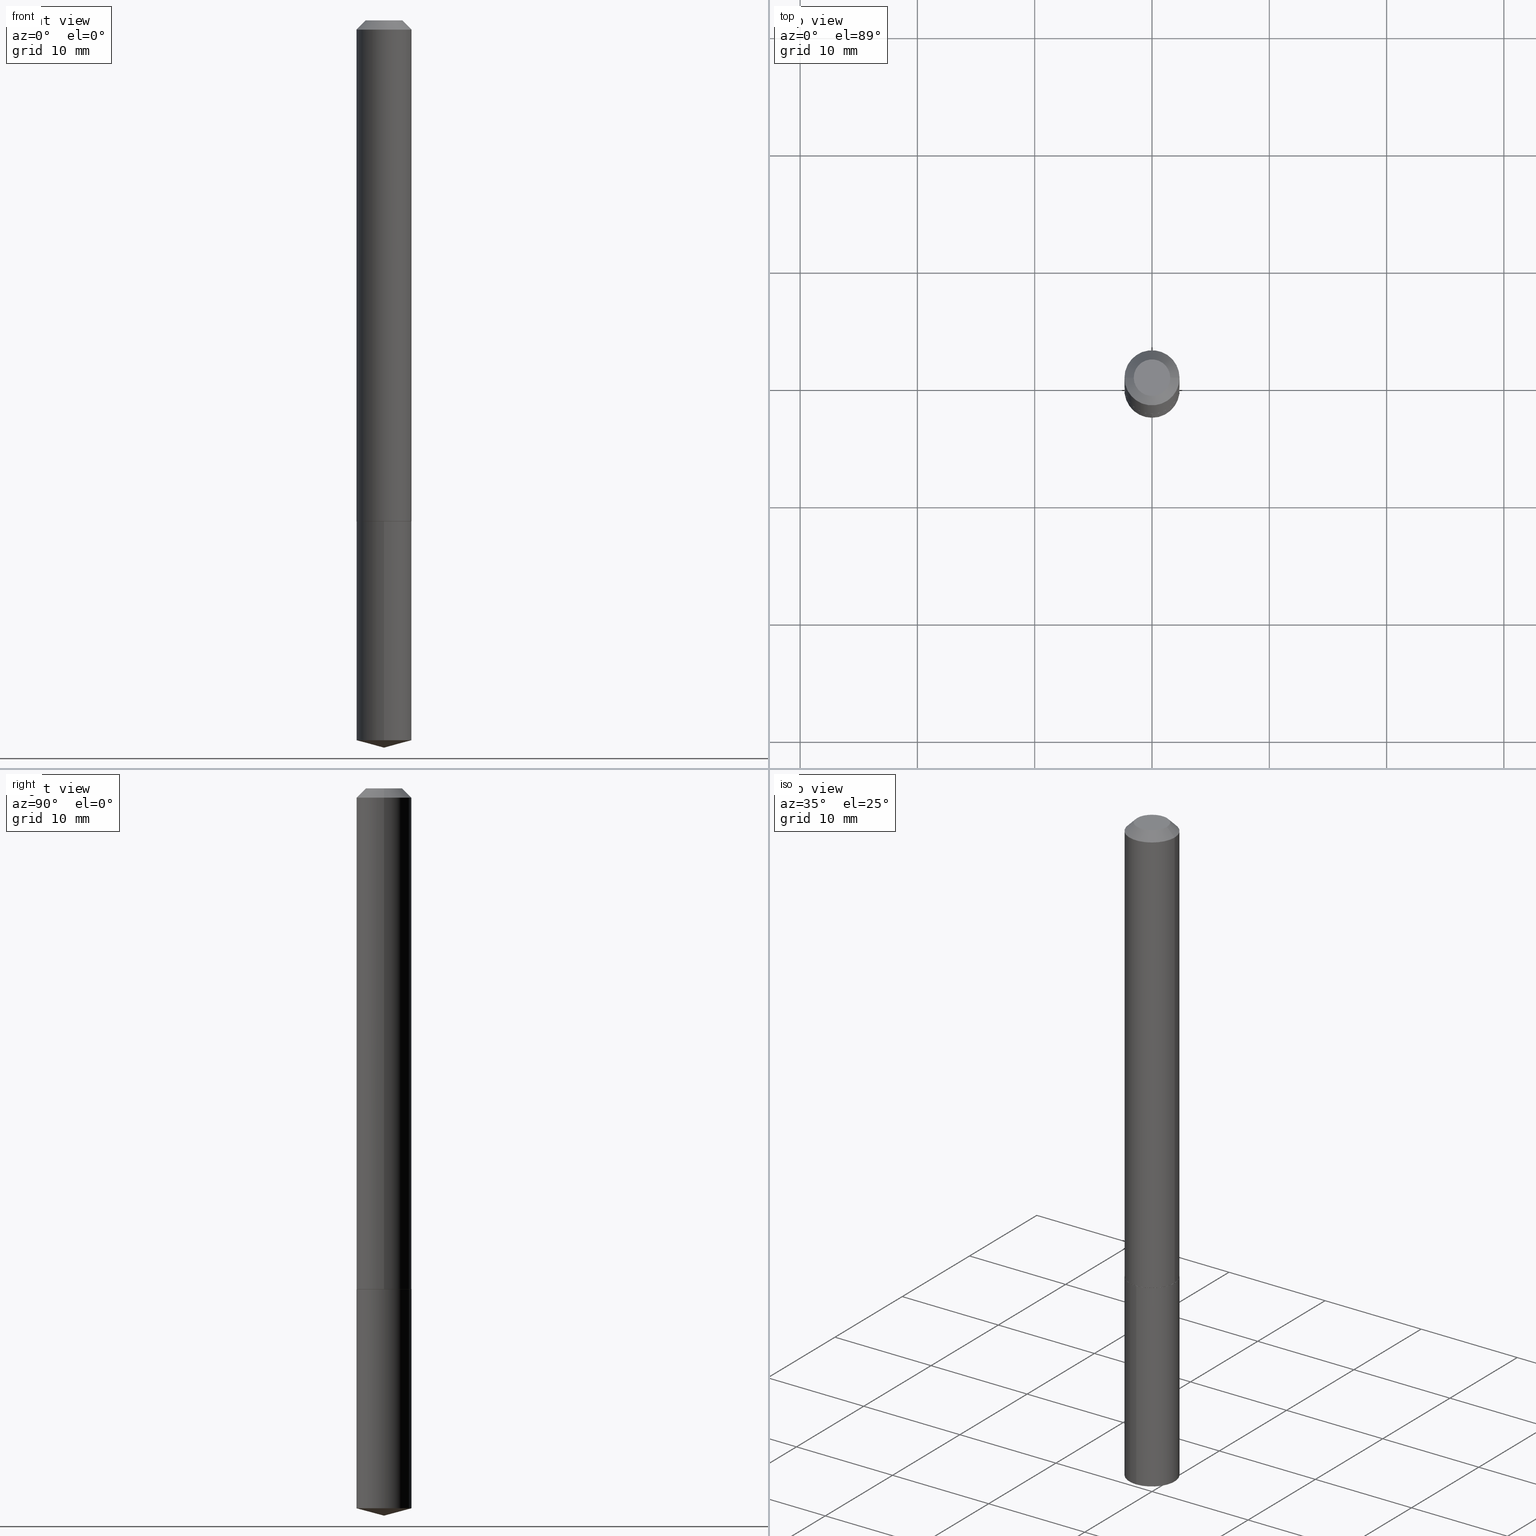
[diagram: canonical four-view strip — front | top / right | iso, engineering-drawing reading convention]
A machine part, canonical four-view strip (front | top / right | iso — engineering-drawing reading convention). The complete STEP part file that produces these views, byte-faithful:
ISO-10303-21;
HEADER;
FILE_DESCRIPTION (( 'STEP AP203' ),
    '1' );
FILE_NAME ('68982.STEP',
    '2024-04-23T14:03:08',
    ( '' ),
    ( '' ),
    'SwSTEP 2.0',
    'SolidWorks 2023',
    '' );
FILE_SCHEMA (( 'CONFIG_CONTROL_DESIGN' ));
ENDSEC;

DATA;
#1 = CONICAL_SURFACE ( 'NONE', #285, 0.09250000000000020706, 0.7853981633974824739 ) ;
#2 = VECTOR ( 'NONE', #243, 39.37007874015748854 ) ;
#3 = CYLINDRICAL_SURFACE ( 'NONE', #154, 0.09249999999999999889 ) ;
#4 = CIRCLE ( 'NONE', #92, 0.09250000000000020706 ) ;
#5 = CARTESIAN_POINT ( 'NONE',  ( 7.642090019328602662E-31, -1.091087918388490267E-16, -0.03125000000000020817 ) ) ;
#6 = CIRCLE ( 'NONE', #215, 0.06125000000000000583 ) ;
#7 = CARTESIAN_POINT ( 'NONE',  ( 0.000000000000000000, 0.000000000000000000, 0.000000000000000000 ) ) ;
#8 = DATE_AND_TIME ( #344, #256 ) ;
#9 = CARTESIAN_POINT ( 'NONE',  ( -0.09250000000000010991, 6.572520305780934529E-16, -4.550014958485793075E-30 ) ) ;
#10 = ORIENTED_EDGE ( 'NONE', *, *, #228, .F. ) ;
#11 = PRODUCT ( '68982', '68982', '', ( #255 ) ) ;
#12 = CARTESIAN_POINT ( 'NONE',  ( 5.969115860415671478E-29, -8.522398256027419659E-15, -2.440900000000000070 ) ) ;
#13 = CARTESIAN_POINT ( 'NONE',  ( -0.09250000000000020706, -5.210182359347813347E-15, -1.680500000000000327 ) ) ;
#14 = ORIENTED_EDGE ( 'NONE', *, *, #330, .T. ) ;
#15 = AXIS2_PLACEMENT_3D ( 'NONE', #166, #259, #284 ) ;
#16 = LOCAL_TIME ( 10, 3, 8.000000000000000000, #273 ) ;
#17 =( NAMED_UNIT ( * ) PLANE_ANGLE_UNIT ( ) SI_UNIT ( $, .RADIAN. ) );
#18 = DIRECTION ( 'NONE',  ( 1.000000000000000000, -6.982962677686267499E-15, 4.876176775795935232E-29 ) ) ;
#19 = DIRECTION ( 'NONE',  ( -2.445456946378660043E-29, 3.491498322761038750E-15, 1.000000000000000000 ) ) ;
#20 = APPROVAL ( #277, 'UNSPECIFIED' ) ;
#21 = DIRECTION ( 'NONE',  ( -2.445456946378660043E-29, 3.491498322761038355E-15, 1.000000000000000000 ) ) ;
#22 = LINE ( 'NONE', #144, #275 ) ;
#23 = APPROVAL_STATUS ( 'not_yet_approved' ) ;
#24 = DIRECTION ( 'NONE',  ( -6.982962677686266711E-15, -1.000000000000000000, 3.510303681827577719E-15 ) ) ;
#25 = DIRECTION ( 'NONE',  ( 1.000000000000000000, -6.982962677686270655E-15, 0.000000000000000000 ) ) ;
#26 = CC_DESIGN_APPROVAL ( #20, ( #363 ) ) ;
#27 = APPROVAL_DATE_TIME ( #57, #20 ) ;
#28 = DIRECTION ( 'NONE',  ( 1.000000000000000000, -6.982962677686266711E-15, 0.000000000000000000 ) ) ;
#29 = CC_DESIGN_DATE_AND_TIME_ASSIGNMENT ( #87, #268, ( #246 ) ) ;
#30 = DIRECTION ( 'NONE',  ( -2.445456946378660043E-29, 3.491498322761038355E-15, 1.000000000000000000 ) ) ;
#31 = EDGE_CURVE ( 'NONE', #385, #267, #4, .T. ) ;
#32 = FACE_OUTER_BOUND ( 'NONE', #58, .T. ) ;
#33 = VECTOR ( 'NONE', #281, 39.37007874015748854 ) ;
#34 = AXIS2_PLACEMENT_3D ( 'NONE', #294, #96, #329 ) ;
#35 = LINE ( 'NONE', #182, #123 ) ;
#36 = AXIS2_PLACEMENT_3D ( 'NONE', #197, #230, #314 ) ;
#37 = AXIS2_PLACEMENT_3D ( 'NONE', #77, #369, #220 ) ;
#38 = DIRECTION ( 'NONE',  ( -2.438088387897960049E-29, 3.491481338843145188E-15, 1.000000000000000000 ) ) ;
#39 = ORIENTED_EDGE ( 'NONE', *, *, #49, .F. ) ;
#40 = EDGE_CURVE ( 'NONE', #367, #244, #324, .T. ) ;
#41 = COORDINATED_UNIVERSAL_TIME_OFFSET ( 5, 0, .BEHIND. ) ;
#42 = CARTESIAN_POINT ( 'NONE',  ( 4.110833063197214951E-29, -5.869180130595328501E-15, -1.681000000000000272 ) ) ;
#43 = AXIS2_PLACEMENT_3D ( 'NONE', #168, #341, #278 ) ;
#44 = ORIENTED_EDGE ( 'NONE', *, *, #362, .F. ) ;
#45 = APPROVAL_PERSON_ORGANIZATION ( #160, #20, #111 ) ;
#46 = CARTESIAN_POINT ( 'NONE',  ( 5.908524411963939619E-29, -8.435831871635287469E-15, -2.416114699700121715 ) ) ;
#47 = ORIENTED_EDGE ( 'NONE', *, *, #270, .T. ) ;
#48 =( LENGTH_UNIT ( ) NAMED_UNIT ( * ) SI_UNIT ( $, .METRE. ) );
#49 = EDGE_CURVE ( 'NONE', #267, #385, #272, .T. ) ;
#50 = CARTESIAN_POINT ( 'NONE',  ( 6.572520305781515328E-16, 0.09249999999999154732, -2.416114699700122159 ) ) ;
#51 =( NAMED_UNIT ( * ) SI_UNIT ( $, .STERADIAN. ) SOLID_ANGLE_UNIT ( ) );
#52 = DIRECTION ( 'NONE',  ( -6.982962677686265922E-15, -1.000000000000000000, 2.953349182339743999E-15 ) ) ;
#53 = EDGE_LOOP ( 'NONE', ( #142, #371, #61, #44 ) ) ;
#54 = APPROVAL_PERSON_ORGANIZATION ( #133, #239, #70 ) ;
#55 = DIRECTION ( 'NONE',  ( -2.445468806185136877E-29, 3.491481338843145188E-15, 1.000000000000000000 ) ) ;
#56 = VERTEX_POINT ( 'NONE', #177 ) ;
#57 = DATE_AND_TIME ( #211, #240 ) ;
#58 = EDGE_LOOP ( 'NONE', ( #342, #76, #219 ) ) ;
#59 = EDGE_CURVE ( 'NONE', #110, #358, #235, .T. ) ;
#60 = SECURITY_CLASSIFICATION_LEVEL ( 'unclassified' ) ;
#61 = ORIENTED_EDGE ( 'NONE', *, *, #270, .F. ) ;
#62 = CARTESIAN_POINT ( 'NONE',  ( -0.09249999999999999889, 5.368152558471306884E-16, -0.03125000000000020817 ) ) ;
#63 = EDGE_CURVE ( 'NONE', #375, #267, #22, .T. ) ;
#64 = LINE ( 'NONE', #379, #217 ) ;
#65 = CIRCLE ( 'NONE', #85, 0.09249999999999999889 ) ;
#66 = APPROVAL ( #23, 'UNSPECIFIED' ) ;
#67 = CARTESIAN_POINT ( 'NONE',  ( -6.459240476859384725E-16, -0.09250000000000588307, -1.680999999999999828 ) ) ;
#68 = CIRCLE ( 'NONE', #366, 0.09249999999999999889 ) ;
#69 = APPROVAL_PERSON_ORGANIZATION ( #207, #66, #151 ) ;
#70 = APPROVAL_ROLE ( '' ) ;
#71 = ORIENTED_EDGE ( 'NONE', *, *, #291, .F. ) ;
#72 = CARTESIAN_POINT ( 'NONE',  ( -9.030869673784255017E-28, 1.289381941821684186E-13, 36.92917874015748225 ) ) ;
#73 = ORIENTED_EDGE ( 'NONE', *, *, #63, .F. ) ;
#74 = DESIGN_CONTEXT ( 'detailed design', #381, 'design' ) ;
#75 = CYLINDRICAL_SURFACE ( 'NONE', #254, 0.09250000000000010991 ) ;
#76 = ORIENTED_EDGE ( 'NONE', *, *, #40, .T. ) ;
#77 = CARTESIAN_POINT ( 'NONE',  ( 0.000000000000000000, 0.000000000000000000, 0.000000000000000000 ) ) ;
#78 = CARTESIAN_POINT ( 'NONE',  ( 4.110833063197214951E-29, -5.869180130595328501E-15, -1.681000000000000272 ) ) ;
#79 = ORIENTED_EDGE ( 'NONE', *, *, #374, .F. ) ;
#80 = PERSON_AND_ORGANIZATION ( #350, #170 ) ;
#81 = CARTESIAN_POINT ( 'NONE',  ( 4.109610328794123271E-29, -5.867434389925906997E-15, -1.680500000000000327 ) ) ;
#82 = VERTEX_POINT ( 'NONE', #116 ) ;
#83 = DIRECTION ( 'NONE',  ( -6.982962677686265922E-15, -1.000000000000000000, 2.953349182339743999E-15 ) ) ;
#84 = VERTEX_POINT ( 'NONE', #384 ) ;
#85 = AXIS2_PLACEMENT_3D ( 'NONE', #289, #21, #146 ) ;
#86 = ORIENTED_EDGE ( 'NONE', *, *, #125, .F. ) ;
#87 = DATE_AND_TIME ( #297, #216 ) ;
#88 = DIRECTION ( 'NONE',  ( -2.445468806185136597E-29, 3.491481338843145583E-15, 1.000000000000000000 ) ) ;
#89 = ORIENTED_EDGE ( 'NONE', *, *, #155, .F. ) ;
#90 = CC_DESIGN_DATE_AND_TIME_ASSIGNMENT ( #8, #136, ( #162 ) ) ;
#91 = FACE_OUTER_BOUND ( 'NONE', #159, .T. ) ;
#92 = AXIS2_PLACEMENT_3D ( 'NONE', #175, #290, #25 ) ;
#93 = CIRCLE ( 'NONE', #242, 0.09249999999999999889 ) ;
#94 = EDGE_CURVE ( 'NONE', #358, #339, #68, .T. ) ;
#95 = CC_DESIGN_PERSON_AND_ORGANIZATION_ASSIGNMENT ( #292, #357, ( #246 ) ) ;
#96 = DIRECTION ( 'NONE',  ( -2.445468806185136597E-29, 3.491481338843145583E-15, 1.000000000000000000 ) ) ;
#97 = EDGE_CURVE ( 'NONE', #56, #100, #6, .T. ) ;
#98 = APPROVAL_STATUS ( 'not_yet_approved' ) ;
#99 = CIRCLE ( 'NONE', #34, 0.09200000000000027600 ) ;
#100 = VERTEX_POINT ( 'NONE', #112 ) ;
#101 = FACE_OUTER_BOUND ( 'NONE', #349, .T. ) ;
#102 = ORIENTED_EDGE ( 'NONE', *, *, #125, .T. ) ;
#103 = FACE_OUTER_BOUND ( 'NONE', #195, .T. ) ;
#104 = DIRECTION ( 'NONE',  ( -2.445456946378660043E-29, 3.491498322761038355E-15, 1.000000000000000000 ) ) ;
#105 = UNCERTAINTY_MEASURE_WITH_UNIT (LENGTH_MEASURE( 1.000000000000000082E-05 ), #248, 'distance_accuracy_value', 'NONE');
#106 = DIRECTION ( 'NONE',  ( -2.445468806185136597E-29, 3.491481338843145583E-15, 1.000000000000000000 ) ) ;
#107 = CIRCLE ( 'NONE', #266, 0.09200000000000027600 ) ;
#108 = CC_DESIGN_PERSON_AND_ORGANIZATION_ASSIGNMENT ( #179, #389, ( #363 ) ) ;
#109 = DIRECTION ( 'NONE',  ( -1.000000000000000000, 6.982962677686265922E-15, -4.876176775795935793E-29 ) ) ;
#110 = VERTEX_POINT ( 'NONE', #50 ) ;
#111 = APPROVAL_ROLE ( '' ) ;
#112 = CARTESIAN_POINT ( 'NONE',  ( -0.06125000000000000583, 4.822608599277072228E-16, 2.388061258305517296E-19 ) ) ;
#113 = DIRECTION ( 'NONE',  ( 1.000000000000000000, -6.982962677686270655E-15, 0.000000000000000000 ) ) ;
#114 = ADVANCED_FACE ( 'NONE', ( #188 ), #1, .T. ) ;
#115 = LINE ( 'NONE', #62, #295 ) ;
#116 = CARTESIAN_POINT ( 'NONE',  ( -0.09200000000000027600, -5.212831586521922971E-15, -1.681000000000000272 ) ) ;
#117 = AXIS2_PLACEMENT_3D ( 'NONE', #225, #203, #109 ) ;
#118 = AXIS2_PLACEMENT_3D ( 'NONE', #72, #360, #24 ) ;
#119 = DATE_AND_TIME ( #148, #150 ) ;
#120 = CARTESIAN_POINT ( 'NONE',  ( 5.969115860415671478E-29, -8.522398256027419659E-15, -2.440900000000000070 ) ) ;
#121 = EDGE_CURVE ( 'NONE', #84, #206, #204, .T. ) ;
#122 = SHAPE_DEFINITION_REPRESENTATION ( #218, #335 ) ;
#123 = VECTOR ( 'NONE', #301, 39.37007874015748143 ) ;
#124 = APPLICATION_CONTEXT ( 'configuration controlled 3d designs of mechanical parts and assemblies' ) ;
#125 = EDGE_CURVE ( 'NONE', #375, #82, #107, .T. ) ;
#126 = AXIS2_PLACEMENT_3D ( 'NONE', #238, #260, #113 ) ;
#127 = CARTESIAN_POINT ( 'NONE',  ( 4.110833063197214951E-29, -5.869180130595328501E-15, -1.681000000000000272 ) ) ;
#128 = LINE ( 'NONE', #181, #2 ) ;
#129 = ADVANCED_FACE ( 'NONE', ( #257 ), #234, .T. ) ;
#130 = CARTESIAN_POINT ( 'NONE',  ( 6.572520305781518286E-16, 0.09249999999999412859, -1.681000000000000494 ) ) ;
#131 = ORIENTED_EDGE ( 'NONE', *, *, #305, .T. ) ;
#132 = EDGE_LOOP ( 'NONE', ( #86, #279 ) ) ;
#133 = PERSON_AND_ORGANIZATION ( #350, #170 ) ;
#134 = DIRECTION ( 'NONE',  ( 1.000000000000000000, -6.982962677686267499E-15, 4.876190086226892022E-29 ) ) ;
#135 = ORIENTED_EDGE ( 'NONE', *, *, #362, .T. ) ;
#136 = DATE_TIME_ROLE ( 'creation_date' ) ;
#137 = DIRECTION ( 'NONE',  ( -2.445456946378660043E-29, 3.491498322761038355E-15, 1.000000000000000000 ) ) ;
#138 = MANIFOLD_SOLID_BREP ( 'Body-Move/Copy2[1]', #180 ) ;
#139 = MANIFOLD_SOLID_BREP ( 'Body-Move/Copy2[2]', #153 ) ;
#140 = CARTESIAN_POINT ( 'NONE',  ( 0.09249999999999999889, -7.550328395248287911E-16, -0.03125000000000020817 ) ) ;
#141 = AXIS2_PLACEMENT_3D ( 'NONE', #78, #137, #143 ) ;
#142 = ORIENTED_EDGE ( 'NONE', *, *, #49, .T. ) ;
#143 = DIRECTION ( 'NONE',  ( -6.982962677686265922E-15, -1.000000000000000000, 2.953349182339743999E-15 ) ) ;
#144 = CARTESIAN_POINT ( 'NONE',  ( 0.09250000000000020706, -6.513358437611888561E-15, -1.680500000000000327 ) ) ;
#145 = ADVANCED_FACE ( 'NONE', ( #370 ), #75, .T. ) ;
#146 = DIRECTION ( 'NONE',  ( -6.982962677686265922E-15, -1.000000000000000000, 2.953349182339743999E-15 ) ) ;
#147 = ORIENTED_EDGE ( 'NONE', *, *, #214, .T. ) ;
#148 = CALENDAR_DATE ( 2024, 23, 4 ) ;
#149 = DIRECTION ( 'NONE',  ( -6.745023994389845444E-15, -0.9659258262890685343, 0.2588190451025198513 ) ) ;
#150 = LOCAL_TIME ( 10, 3, 8.000000000000000000, #176 ) ;
#151 = APPROVAL_ROLE ( '' ) ;
#152 = PRODUCT_RELATED_PRODUCT_CATEGORY ( 'detail', '', ( #11 ) ) ;
#153 = CLOSED_SHELL ( 'NONE', ( #364, #145, #114, #351, #298, #382, #129, #222 ) ) ;
#154 = AXIS2_PLACEMENT_3D ( 'NONE', #127, #213, #327 ) ;
#155 = EDGE_CURVE ( 'NONE', #339, #358, #169, .T. ) ;
#156 = FACE_OUTER_BOUND ( 'NONE', #132, .T. ) ;
#157 = ADVANCED_FACE ( 'NONE', ( #345 ), #227, .T. ) ;
#158 = DIRECTION ( 'NONE',  ( 1.000000000000000000, -6.982962677686265922E-15, 4.876176775795935793E-29 ) ) ;
#159 = EDGE_LOOP ( 'NONE', ( #320, #165, #14, #336 ) ) ;
#160 = PERSON_AND_ORGANIZATION ( #350, #170 ) ;
#161 = DIRECTION ( 'NONE',  ( 2.445468806185136597E-29, -3.491481338843145583E-15, -1.000000000000000000 ) ) ;
#162 = PRODUCT_DEFINITION ( 'UNKNOWN', '', #363, #74 ) ;
#163 = LENGTH_MEASURE_WITH_UNIT ( LENGTH_MEASURE( 0.02539999999999999897 ), #48 );
#164 = PLANE ( 'NONE',  #117 ) ;
#165 = ORIENTED_EDGE ( 'NONE', *, *, #247, .T. ) ;
#166 = CARTESIAN_POINT ( 'NONE',  ( 4.110833063197214951E-29, -5.869180130595328501E-15, -1.681000000000000272 ) ) ;
#167 = APPLICATION_PROTOCOL_DEFINITION ( 'international standard', 'config_control_design', 1994, #381 ) ;
#168 = CARTESIAN_POINT ( 'NONE',  ( 7.642090019328602662E-31, -1.091087918388490267E-16, -0.03125000000000020817 ) ) ;
#169 = CIRCLE ( 'NONE', #36, 0.09249999999999999889 ) ;
#170 = ORGANIZATION ( 'UNSPECIFIED', 'UNSPECIFIED', '' ) ;
#171 = EDGE_CURVE ( 'NONE', #100, #56, #302, .T. ) ;
#172 = CARTESIAN_POINT ( 'NONE',  ( -6.459240476859204273E-16, -0.09250000000000842271, -2.416114699700121715 ) ) ;
#173 = ORIENTED_EDGE ( 'NONE', *, *, #31, .F. ) ;
#174 = PERSON_AND_ORGANIZATION_ROLE ( 'creator' ) ;
#175 = CARTESIAN_POINT ( 'NONE',  ( 4.109610328794123271E-29, -5.867434389925906997E-15, -1.680500000000000327 ) ) ;
#176 = COORDINATED_UNIVERSAL_TIME_OFFSET ( 5, 0, .BEHIND. ) ;
#177 = CARTESIAN_POINT ( 'NONE',  ( 0.06125000000000000583, -5.819551794981109879E-16, 2.388061258372631621E-19 ) ) ;
#178 =( GEOMETRIC_REPRESENTATION_CONTEXT ( 3 ) GLOBAL_UNCERTAINTY_ASSIGNED_CONTEXT ( ( #105 ) ) GLOBAL_UNIT_ASSIGNED_CONTEXT ( ( #248, #17, #51 ) ) REPRESENTATION_CONTEXT ( 'NONE', 'WORKASPACE' ) );
#179 = PERSON_AND_ORGANIZATION ( #350, #170 ) ;
#180 = CLOSED_SHELL ( 'NONE', ( #157, #264, #271, #359, #190 ) ) ;
#181 = CARTESIAN_POINT ( 'NONE',  ( 5.969156082721290175E-29, -8.522341156095462881E-15, -2.440900000000000070 ) ) ;
#182 = CARTESIAN_POINT ( 'NONE',  ( -6.459240476859384725E-16, -0.09250000000000588307, -1.680999999999999828 ) ) ;
#183 = AXIS2_PLACEMENT_3D ( 'NONE', #221, #232, #134 ) ;
#184 = AXIS2_PLACEMENT_3D ( 'NONE', #304, #38, #158 ) ;
#185 = PLANE ( 'NONE',  #184 ) ;
#186 = ORIENTED_EDGE ( 'NONE', *, *, #291, .T. ) ;
#187 = PERSON_AND_ORGANIZATION ( #350, #170 ) ;
#188 = FACE_OUTER_BOUND ( 'NONE', #205, .T. ) ;
#189 = ORIENTED_EDGE ( 'NONE', *, *, #374, .T. ) ;
#190 = ADVANCED_FACE ( 'NONE', ( #373 ), #311, .F. ) ;
#191 = DATE_AND_TIME ( #337, #16 ) ;
#192 = AXIS2_PLACEMENT_3D ( 'NONE', #338, #161, #287 ) ;
#193 = DIRECTION ( 'NONE',  ( -2.445468806185136597E-29, 3.491481338843145583E-15, 1.000000000000000000 ) ) ;
#194 = AXIS2_PLACEMENT_3D ( 'NONE', #387, #88, #208 ) ;
#195 = EDGE_LOOP ( 'NONE', ( #10, #253, #135, #318 ) ) ;
#196 = CARTESIAN_POINT ( 'NONE',  ( -0.09250000000000020706, -5.210182359347813347E-15, -1.680500000000000327 ) ) ;
#197 = CARTESIAN_POINT ( 'NONE',  ( 4.110833063197214951E-29, -5.869180130595328501E-15, -1.681000000000000272 ) ) ;
#198 = ORIENTED_EDGE ( 'NONE', *, *, #97, .T. ) ;
#199 = DIRECTION ( 'NONE',  ( -1.000000000000000000, 6.982962677686266711E-15, 0.000000000000000000 ) ) ;
#200 = EDGE_CURVE ( 'NONE', #82, #385, #352, .T. ) ;
#201 = DIRECTION ( 'NONE',  ( 1.000000000000000000, -6.982962677686267499E-15, 4.876190086226892022E-29 ) ) ;
#202 = ORIENTED_EDGE ( 'NONE', *, *, #200, .T. ) ;
#203 = DIRECTION ( 'NONE',  ( 2.438088387897960049E-29, -3.491481338843145188E-15, -1.000000000000000000 ) ) ;
#204 = CIRCLE ( 'NONE', #43, 0.09249999999999999889 ) ;
#205 = EDGE_LOOP ( 'NONE', ( #102, #202, #39, #73 ) ) ;
#206 = VERTEX_POINT ( 'NONE', #140 ) ;
#207 = PERSON_AND_ORGANIZATION ( #350, #170 ) ;
#208 = DIRECTION ( 'NONE',  ( 1.000000000000000000, -6.982962677686270655E-15, 0.000000000000000000 ) ) ;
#209 = ORIENTED_EDGE ( 'NONE', *, *, #40, .F. ) ;
#210 = VECTOR ( 'NONE', #19, 39.37007874015748143 ) ;
#211 = CALENDAR_DATE ( 2024, 23, 4 ) ;
#212 = DIRECTION ( 'NONE',  ( -6.982962677686266711E-15, -1.000000000000000000, 3.510303681827577719E-15 ) ) ;
#213 = DIRECTION ( 'NONE',  ( -2.445456946378660043E-29, 3.491498322761038355E-15, 1.000000000000000000 ) ) ;
#214 = EDGE_CURVE ( 'NONE', #244, #110, #331, .T. ) ;
#215 = AXIS2_PLACEMENT_3D ( 'NONE', #252, #249, #201 ) ;
#216 = LOCAL_TIME ( 10, 3, 8.000000000000000000, #263 ) ;
#217 = VECTOR ( 'NONE', #365, 39.37007874015748143 ) ;
#218 = PRODUCT_DEFINITION_SHAPE ( 'NONE', 'NONE',  #162 ) ;
#219 = ORIENTED_EDGE ( 'NONE', *, *, #247, .F. ) ;
#220 = DIRECTION ( 'NONE',  ( 1.000000000000000000, 0.000000000000000000, 0.000000000000000000 ) ) ;
#221 = CARTESIAN_POINT ( 'NONE',  ( -5.839929314523175409E-48, 8.337871319499082469E-34, 2.388061258337334140E-19 ) ) ;
#222 = ADVANCED_FACE ( 'NONE', ( #380 ), #164, .F. ) ;
#223 = EDGE_LOOP ( 'NONE', ( #288, #198 ) ) ;
#224 = PERSON_AND_ORGANIZATION_ROLE ( 'design_owner' ) ;
#225 = CARTESIAN_POINT ( 'NONE',  ( -2.919964657261587705E-48, 4.168935659749541235E-34, 1.194030629168667070E-19 ) ) ;
#226 = ORIENTED_EDGE ( 'NONE', *, *, #200, .F. ) ;
#227 = CYLINDRICAL_SURFACE ( 'NONE', #141, 0.09249999999999999889 ) ;
#228 = EDGE_CURVE ( 'NONE', #385, #84, #319, .T. ) ;
#229 = DIRECTION ( 'NONE',  ( 2.445468806185136597E-29, -3.491481338843145583E-15, -1.000000000000000000 ) ) ;
#230 = DIRECTION ( 'NONE',  ( -2.445456946378660043E-29, 3.491498322761038355E-15, 1.000000000000000000 ) ) ;
#231 = CC_DESIGN_PERSON_AND_ORGANIZATION_ASSIGNMENT ( #187, #280, ( #162 ) ) ;
#232 = DIRECTION ( 'NONE',  ( -2.445468806185136597E-29, 3.491481338843145583E-15, 1.000000000000000000 ) ) ;
#233 = DIRECTION ( 'NONE',  ( 0.7071067811865715536, -2.468850131082509496E-15, 0.7071067811865232589 ) ) ;
#234 = CONICAL_SURFACE ( 'NONE', #192, 0.09249999999999999889, 0.7853981633974449483 ) ;
#235 = LINE ( 'NONE', #296, #210 ) ;
#236 = APPROVAL_DATE_TIME ( #119, #66 ) ;
#237 = CC_DESIGN_PERSON_AND_ORGANIZATION_ASSIGNMENT ( #80, #224, ( #11 ) ) ;
#238 = CARTESIAN_POINT ( 'NONE',  ( 4.109610328794123271E-29, -5.867434389925906997E-15, -1.680500000000000327 ) ) ;
#239 = APPROVAL ( #98, 'UNSPECIFIED' ) ;
#240 = LOCAL_TIME ( 10, 3, 8.000000000000000000, #321 ) ;
#241 = CARTESIAN_POINT ( 'NONE',  ( 7.642090019328602662E-31, -1.091087918388490267E-16, -0.03125000000000020817 ) ) ;
#242 = AXIS2_PLACEMENT_3D ( 'NONE', #241, #269, #28 ) ;
#243 = DIRECTION ( 'NONE',  ( 6.863315791527699781E-15, 0.9659258262890704216, 0.2588190451025130789 ) ) ;
#244 = VERTEX_POINT ( 'NONE', #172 ) ;
#245 = AXIS2_PLACEMENT_3D ( 'NONE', #46, #104, #83 ) ;
#246 = SECURITY_CLASSIFICATION ( '', '', #60 ) ;
#247 = EDGE_CURVE ( 'NONE', #110, #244, #65, .T. ) ;
#248 =( CONVERSION_BASED_UNIT ( 'INCH', #163 ) LENGTH_UNIT ( ) NAMED_UNIT ( #261 ) );
#249 = DIRECTION ( 'NONE',  ( -2.445468806185136597E-29, 3.491481338843145583E-15, 1.000000000000000000 ) ) ;
#250 = ORIENTED_EDGE ( 'NONE', *, *, #63, .T. ) ;
#251 = LINE ( 'NONE', #308, #355 ) ;
#252 = CARTESIAN_POINT ( 'NONE',  ( -5.839929314523175409E-48, 8.337871319499082469E-34, 2.388061258337334140E-19 ) ) ;
#253 = ORIENTED_EDGE ( 'NONE', *, *, #31, .T. ) ;
#254 = AXIS2_PLACEMENT_3D ( 'NONE', #7, #106, #18 ) ;
#255 = MECHANICAL_CONTEXT ( 'NONE', #124, 'mechanical' ) ;
#256 = LOCAL_TIME ( 10, 3, 8.000000000000000000, #41 ) ;
#257 = FACE_OUTER_BOUND ( 'NONE', #307, .T. ) ;
#258 = EDGE_LOOP ( 'NONE', ( #226, #262, #250, #173 ) ) ;
#259 = DIRECTION ( 'NONE',  ( 2.445456946378659483E-29, -3.491498322761038750E-15, -1.000000000000000000 ) ) ;
#260 = DIRECTION ( 'NONE',  ( -2.445468806185136597E-29, 3.491481338843145583E-15, 1.000000000000000000 ) ) ;
#261 = DIMENSIONAL_EXPONENTS ( 1.000000000000000000, 0.000000000000000000, 0.000000000000000000, 0.000000000000000000, 0.000000000000000000, 0.000000000000000000, 0.000000000000000000 ) ;
#262 = ORIENTED_EDGE ( 'NONE', *, *, #300, .T. ) ;
#263 = COORDINATED_UNIVERSAL_TIME_OFFSET ( 5, 0, .BEHIND. ) ;
#264 = ADVANCED_FACE ( 'NONE', ( #101 ), #286, .T. ) ;
#265 = DIRECTION ( 'NONE',  ( -0.7071067811865451302, 2.468850131082231817E-15, -0.7071067811865499042 ) ) ;
#266 = AXIS2_PLACEMENT_3D ( 'NONE', #42, #193, #377 ) ;
#267 = VERTEX_POINT ( 'NONE', #299 ) ;
#268 = DATE_TIME_ROLE ( 'classification_date' ) ;
#269 = DIRECTION ( 'NONE',  ( -2.445468806185136597E-29, 3.491481338843145583E-15, 1.000000000000000000 ) ) ;
#270 = EDGE_CURVE ( 'NONE', #206, #84, #93, .T. ) ;
#271 = ADVANCED_FACE ( 'NONE', ( #32 ), #326, .T. ) ;
#272 = CIRCLE ( 'NONE', #126, 0.09250000000000020706 ) ;
#273 = COORDINATED_UNIVERSAL_TIME_OFFSET ( 5, 0, .BEHIND. ) ;
#274 = ORIENTED_EDGE ( 'NONE', *, *, #155, .T. ) ;
#275 = VECTOR ( 'NONE', #233, 39.37007874015748854 ) ;
#276 = CC_DESIGN_SECURITY_CLASSIFICATION ( #246, ( #363 ) ) ;
#277 = APPROVAL_STATUS ( 'not_yet_approved' ) ;
#278 = DIRECTION ( 'NONE',  ( 1.000000000000000000, -6.982962677686266711E-15, 0.000000000000000000 ) ) ;
#279 = ORIENTED_EDGE ( 'NONE', *, *, #300, .F. ) ;
#280 = PERSON_AND_ORGANIZATION_ROLE ( 'creator' ) ;
#281 = DIRECTION ( 'NONE',  ( -0.7071067811865715536, 7.493145998870439357E-15, 0.7071067811865232589 ) ) ;
#282 = EDGE_LOOP ( 'NONE', ( #147, #312, #89, #356 ) ) ;
#283 = FACE_OUTER_BOUND ( 'NONE', #353, .T. ) ;
#284 = DIRECTION ( 'NONE',  ( 6.982962677686265922E-15, 1.000000000000000000, -3.491498322761038750E-15 ) ) ;
#285 = AXIS2_PLACEMENT_3D ( 'NONE', #81, #348, #309 ) ;
#286 = CONICAL_SURFACE ( 'NONE', #118, 146.9311341562576274, 1.308996938995751647 ) ;
#287 = DIRECTION ( 'NONE',  ( -1.000000000000000000, 6.982962677686266711E-15, 0.000000000000000000 ) ) ;
#288 = ORIENTED_EDGE ( 'NONE', *, *, #171, .T. ) ;
#289 = CARTESIAN_POINT ( 'NONE',  ( 5.908524411963939619E-29, -8.435831871635287469E-15, -2.416114699700121715 ) ) ;
#290 = DIRECTION ( 'NONE',  ( -2.445468806185136597E-29, 3.491481338843145583E-15, 1.000000000000000000 ) ) ;
#291 = EDGE_CURVE ( 'NONE', #100, #84, #115, .T. ) ;
#292 = PERSON_AND_ORGANIZATION ( #350, #170 ) ;
#293 = ORIENTED_EDGE ( 'NONE', *, *, #94, .T. ) ;
#294 = CARTESIAN_POINT ( 'NONE',  ( 4.110833063197214951E-29, -5.869180130595328501E-15, -1.681000000000000272 ) ) ;
#295 = VECTOR ( 'NONE', #265, 39.37007874015748143 ) ;
#296 = CARTESIAN_POINT ( 'NONE',  ( 6.572520305781336848E-16, 0.09249999999999412859, -1.681000000000000494 ) ) ;
#297 = CALENDAR_DATE ( 2024, 23, 4 ) ;
#298 = ADVANCED_FACE ( 'NONE', ( #390 ), #386, .T. ) ;
#299 = CARTESIAN_POINT ( 'NONE',  ( 0.09250000000000020706, -6.513358437611888561E-15, -1.680500000000000327 ) ) ;
#300 = EDGE_CURVE ( 'NONE', #82, #375, #99, .T. ) ;
#301 = DIRECTION ( 'NONE',  ( -2.445456946378660043E-29, 3.491498322761038750E-15, 1.000000000000000000 ) ) ;
#302 = CIRCLE ( 'NONE', #183, 0.06125000000000000583 ) ;
#303 = CONICAL_SURFACE ( 'NONE', #361, 0.09249999999999999889, 0.7853981633974449483 ) ;
#304 = CARTESIAN_POINT ( 'NONE',  ( 4.110833063197214951E-29, -5.869180130595328501E-15, -1.681000000000000272 ) ) ;
#305 = EDGE_CURVE ( 'NONE', #367, #110, #128, .T. ) ;
#306 = APPROVAL_DATE_TIME ( #191, #239 ) ;
#307 = EDGE_LOOP ( 'NONE', ( #79, #378, #186, #322 ) ) ;
#308 = CARTESIAN_POINT ( 'NONE',  ( 0.09249999999999999889, -7.437048566327158175E-16, -0.03125000000000020817 ) ) ;
#309 = DIRECTION ( 'NONE',  ( 1.000000000000000000, -6.982962677686270655E-15, 0.000000000000000000 ) ) ;
#310 = CC_DESIGN_APPROVAL ( #239, ( #162 ) ) ;
#311 = PLANE ( 'NONE',  #15 ) ;
#312 = ORIENTED_EDGE ( 'NONE', *, *, #59, .T. ) ;
#313 = DIRECTION ( 'NONE',  ( 1.000000000000000000, -6.982962677686267499E-15, 4.876176775795935232E-29 ) ) ;
#314 = DIRECTION ( 'NONE',  ( -6.982962677686265922E-15, -1.000000000000000000, 2.953349182339743999E-15 ) ) ;
#315 = EDGE_LOOP ( 'NONE', ( #274, #293 ) ) ;
#316 = DIRECTION ( 'NONE',  ( -2.445468806185136597E-29, 3.491481338843145583E-15, 1.000000000000000000 ) ) ;
#317 = CARTESIAN_POINT ( 'NONE',  ( 4.110833063197214951E-29, -5.869180130595328501E-15, -1.681000000000000272 ) ) ;
#318 = ORIENTED_EDGE ( 'NONE', *, *, #121, .F. ) ;
#319 = LINE ( 'NONE', #9, #328 ) ;
#320 = ORIENTED_EDGE ( 'NONE', *, *, #59, .F. ) ;
#321 = COORDINATED_UNIVERSAL_TIME_OFFSET ( 5, 0, .BEHIND. ) ;
#322 = ORIENTED_EDGE ( 'NONE', *, *, #121, .T. ) ;
#323 = PERSON_AND_ORGANIZATION ( #350, #170 ) ;
#324 = LINE ( 'NONE', #120, #354 ) ;
#325 = CARTESIAN_POINT ( 'NONE',  ( -9.030869673784255017E-28, 1.289381941821684186E-13, 36.92917874015748225 ) ) ;
#326 = CONICAL_SURFACE ( 'NONE', #332, 146.9311341562576274, 1.308996938995751647 ) ;
#327 = DIRECTION ( 'NONE',  ( -6.982962677686265922E-15, -1.000000000000000000, 2.953349182339743999E-15 ) ) ;
#328 = VECTOR ( 'NONE', #55, 39.37007874015748143 ) ;
#329 = DIRECTION ( 'NONE',  ( 1.000000000000000000, -6.982962677686269866E-15, 0.000000000000000000 ) ) ;
#330 = EDGE_CURVE ( 'NONE', #244, #339, #35, .T. ) ;
#331 = CIRCLE ( 'NONE', #245, 0.09249999999999999889 ) ;
#332 = AXIS2_PLACEMENT_3D ( 'NONE', #325, #30, #212 ) ;
#333 = APPLICATION_PROTOCOL_DEFINITION ( 'international standard', 'config_control_design', 1994, #124 ) ;
#334 = CC_DESIGN_PERSON_AND_ORGANIZATION_ASSIGNMENT ( #323, #174, ( #363 ) ) ;
#335 = ADVANCED_BREP_SHAPE_REPRESENTATION ( '68982', ( #138, #139, #37 ), #178 ) ;
#336 = ORIENTED_EDGE ( 'NONE', *, *, #94, .F. ) ;
#337 = CALENDAR_DATE ( 2024, 23, 4 ) ;
#338 = CARTESIAN_POINT ( 'NONE',  ( 7.642090019328602662E-31, -1.091087918388490267E-16, -0.03125000000000020817 ) ) ;
#339 = VERTEX_POINT ( 'NONE', #67 ) ;
#340 = CARTESIAN_POINT ( 'NONE',  ( 0.09200000000000027600, -6.511612696942467058E-15, -1.681000000000000272 ) ) ;
#341 = DIRECTION ( 'NONE',  ( -2.445468806185136597E-29, 3.491481338843145583E-15, 1.000000000000000000 ) ) ;
#342 = ORIENTED_EDGE ( 'NONE', *, *, #305, .F. ) ;
#343 = CC_DESIGN_APPROVAL ( #66, ( #246 ) ) ;
#344 = CALENDAR_DATE ( 2024, 23, 4 ) ;
#345 = FACE_OUTER_BOUND ( 'NONE', #282, .T. ) ;
#346 = ORIENTED_EDGE ( 'NONE', *, *, #214, .F. ) ;
#347 = CYLINDRICAL_SURFACE ( 'NONE', #368, 0.09250000000000010991 ) ;
#348 = DIRECTION ( 'NONE',  ( -2.445468806185136597E-29, 3.491481338843145583E-15, 1.000000000000000000 ) ) ;
#349 = EDGE_LOOP ( 'NONE', ( #209, #131, #346 ) ) ;
#350 = PERSON ( 'UNSPECIFIED', 'UNSPECIFIED', 'UNSPECIFIED', ('UNSPECIFIED'), ('UNSPECIFIED'), ('UNSPECIFIED') ) ;
#351 = ADVANCED_FACE ( 'NONE', ( #156 ), #185, .F. ) ;
#352 = LINE ( 'NONE', #13, #33 ) ;
#353 = EDGE_LOOP ( 'NONE', ( #388, #189, #47, #71 ) ) ;
#354 = VECTOR ( 'NONE', #149, 39.37007874015748143 ) ;
#355 = VECTOR ( 'NONE', #372, 39.37007874015748143 ) ;
#356 = ORIENTED_EDGE ( 'NONE', *, *, #330, .F. ) ;
#357 = PERSON_AND_ORGANIZATION_ROLE ( 'classification_officer' ) ;
#358 = VERTEX_POINT ( 'NONE', #130 ) ;
#359 = ADVANCED_FACE ( 'NONE', ( #91 ), #3, .T. ) ;
#360 = DIRECTION ( 'NONE',  ( -2.445456946378660043E-29, 3.491498322761038355E-15, 1.000000000000000000 ) ) ;
#361 = AXIS2_PLACEMENT_3D ( 'NONE', #5, #229, #199 ) ;
#362 = EDGE_CURVE ( 'NONE', #267, #206, #64, .T. ) ;
#363 = PRODUCT_DEFINITION_FORMATION_WITH_SPECIFIED_SOURCE ( 'ANY', '', #11, .NOT_KNOWN. ) ;
#364 = ADVANCED_FACE ( 'NONE', ( #283 ), #303, .T. ) ;
#365 = DIRECTION ( 'NONE',  ( -2.445468806185136877E-29, 3.491481338843145188E-15, 1.000000000000000000 ) ) ;
#366 = AXIS2_PLACEMENT_3D ( 'NONE', #317, #383, #52 ) ;
#367 = VERTEX_POINT ( 'NONE', #12 ) ;
#368 = AXIS2_PLACEMENT_3D ( 'NONE', #376, #316, #313 ) ;
#369 = DIRECTION ( 'NONE',  ( 0.000000000000000000, 0.000000000000000000, 1.000000000000000000 ) ) ;
#370 = FACE_OUTER_BOUND ( 'NONE', #53, .T. ) ;
#371 = ORIENTED_EDGE ( 'NONE', *, *, #228, .T. ) ;
#372 = DIRECTION ( 'NONE',  ( 0.7071067811865451302, -7.319954787623248157E-15, -0.7071067811865499042 ) ) ;
#373 = FACE_OUTER_BOUND ( 'NONE', #315, .T. ) ;
#374 = EDGE_CURVE ( 'NONE', #56, #206, #251, .T. ) ;
#375 = VERTEX_POINT ( 'NONE', #340 ) ;
#376 = CARTESIAN_POINT ( 'NONE',  ( 0.000000000000000000, 0.000000000000000000, 0.000000000000000000 ) ) ;
#377 = DIRECTION ( 'NONE',  ( 1.000000000000000000, -6.982962677686269866E-15, 0.000000000000000000 ) ) ;
#378 = ORIENTED_EDGE ( 'NONE', *, *, #171, .F. ) ;
#379 = CARTESIAN_POINT ( 'NONE',  ( 0.09250000000000010991, -6.459240476859804793E-16, 4.510463517611245653E-30 ) ) ;
#380 = FACE_OUTER_BOUND ( 'NONE', #223, .T. ) ;
#381 = APPLICATION_CONTEXT ( 'configuration controlled 3d designs of mechanical parts and assemblies' ) ;
#382 = ADVANCED_FACE ( 'NONE', ( #103 ), #347, .T. ) ;
#383 = DIRECTION ( 'NONE',  ( -2.445456946378660043E-29, 3.491498322761038355E-15, 1.000000000000000000 ) ) ;
#384 = CARTESIAN_POINT ( 'NONE',  ( -0.09249999999999999889, -2.331019560304282821E-15, -0.03125000000000020817 ) ) ;
#385 = VERTEX_POINT ( 'NONE', #196 ) ;
#386 = CONICAL_SURFACE ( 'NONE', #194, 0.09250000000000020706, 0.7853981633974824739 ) ;
#387 = CARTESIAN_POINT ( 'NONE',  ( 4.109610328794123271E-29, -5.867434389925906997E-15, -1.680500000000000327 ) ) ;
#388 = ORIENTED_EDGE ( 'NONE', *, *, #97, .F. ) ;
#389 = PERSON_AND_ORGANIZATION_ROLE ( 'design_supplier' ) ;
#390 = FACE_OUTER_BOUND ( 'NONE', #258, .T. ) ;
ENDSEC;
END-ISO-10303-21;
